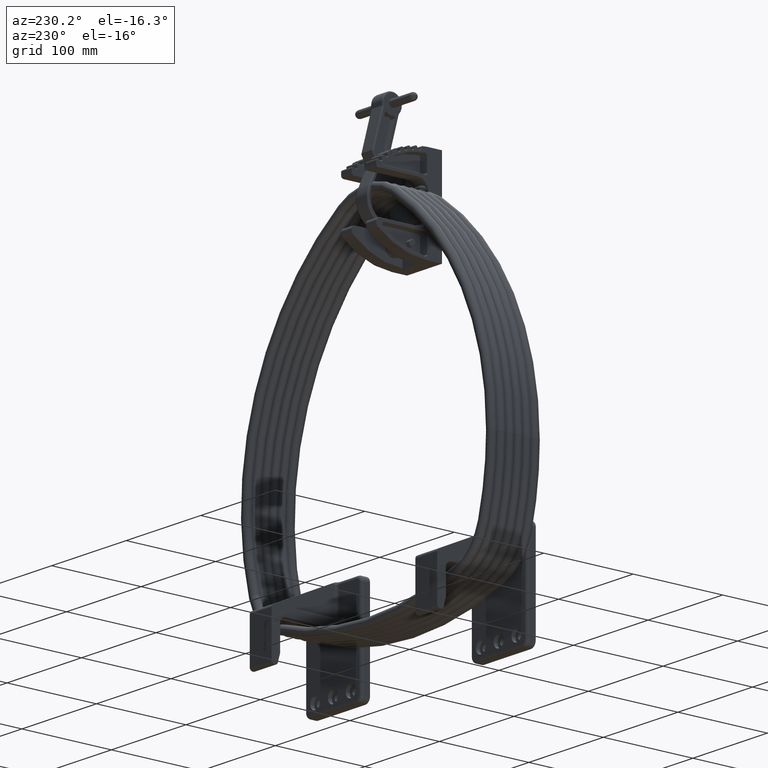
[diagram: clean part render]
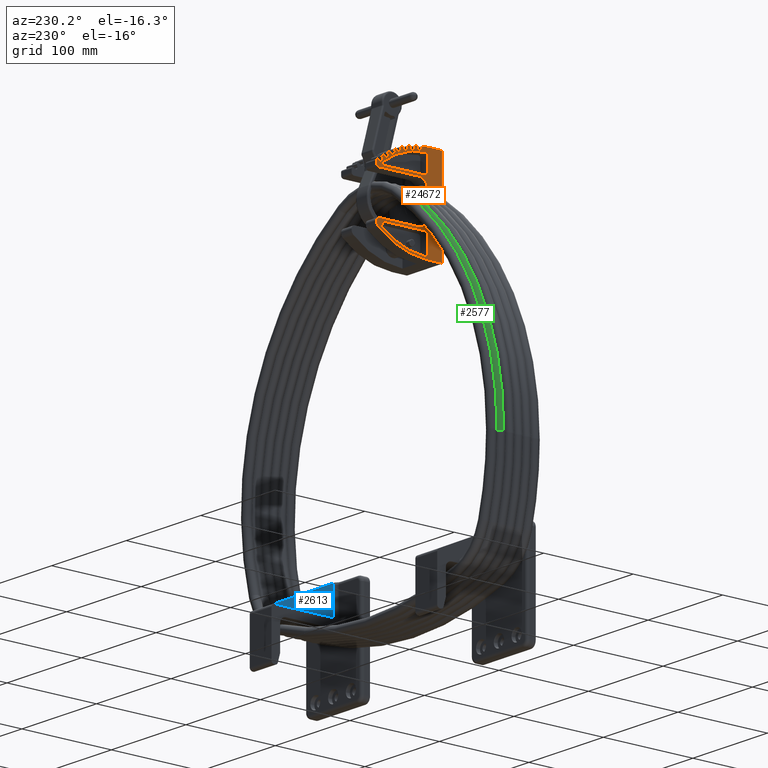
[diagram: same view with three faces highlighted in distinct colors, each labeled with its STEP entity id]
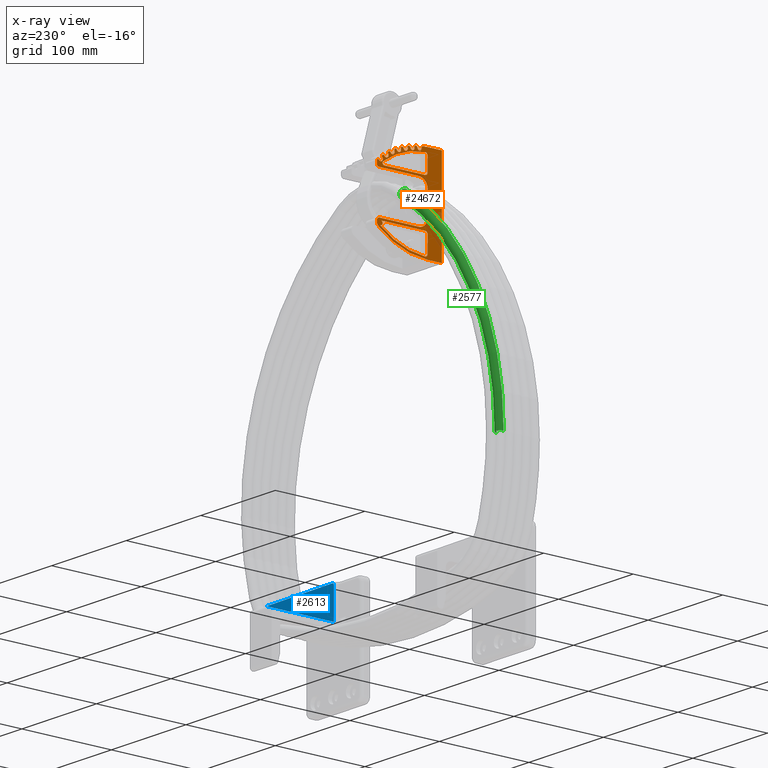
[diagram: x-ray of the same camera — body ghosted, the three highlighted faces saturated]
A machine part, auxiliary view with three faces highlighted in distinct colors.
The next image is the same camera in x-ray (body ghosted, the three faces saturated) — at least one of them is partly hidden behind the body in this view.
Their STEP definitions:

[orange] entity #24672 — the highlighted planar face has unit normal (-1, 0, 0).
#2015 = CARTESIAN_POINT ( 'NONE',  ( 1.736568379252359200, 1.756109418609299600, 0.9375000000000000000 ) ) ;
#2022 = DIRECTION ( 'NONE',  ( 0.0000000000000000000, 0.0000000000000000000, 1.000000000000000000 ) ) ;
#2023 = DIRECTION ( 'NONE',  ( 1.000000000000000000, 0.0000000000000000000, 0.0000000000000000000 ) ) ;
#5595 = AXIS2_PLACEMENT_3D ( 'NONE', #32948, #32955, #32956 ) ;
#8352 = EDGE_CURVE ( 'NONE', #23127, #23146, #24239, .T. ) ;
#9903 = EDGE_CURVE ( 'NONE', #22936, #22940, #30494, .T. ) ;
#11911 = CARTESIAN_POINT ( 'NONE',  ( -1.047895038850051600, 2.676249999999994700, 0.9375000000000000000 ) ) ;
#11912 = PLANE ( 'NONE',  #25111 ) ;
#11913 = DIRECTION ( 'NONE',  ( 0.0000000000000000000, 0.0000000000000000000, 1.000000000000000000 ) ) ;
#11914 = DIRECTION ( 'NONE',  ( 1.000000000000000000, 0.0000000000000000000, -0.0000000000000000000 ) ) ;
#13108 = FACE_OUTER_BOUND ( 'NONE', #18430, .T. ) ;
#13116 = FACE_BOUND ( 'NONE', #18273, .T. ) ;
#13118 = FACE_BOUND ( 'NONE', #18165, .T. ) ;
#13492 = LINE ( 'NONE', #16976, #13512 ) ;
#13493 = LINE ( 'NONE', #16988, #13518 ) ;
#13494 = CIRCLE ( 'NONE', #25288, 0.2031250000000044100 ) ;
#13505 = LINE ( 'NONE', #16964, #13506 ) ;
#13506 = VECTOR ( 'NONE', #16965, 39.37007874015748100 ) ;
#13507 = LINE ( 'NONE', #16966, #13508 ) ;
#13508 = VECTOR ( 'NONE', #16967, 39.37007874015748100 ) ;
#13509 = LINE ( 'NONE', #16968, #13510 ) ;
#13510 = VECTOR ( 'NONE', #16969, 39.37007874015748100 ) ;
#13511 = LINE ( 'NONE', #16983, #13514 ) ;
#13512 = VECTOR ( 'NONE', #16977, 39.37007874015748100 ) ;
#13513 = CIRCLE ( 'NONE', #25289, 0.1243750000000022800 ) ;
#13514 = VECTOR ( 'NONE', #16984, 39.37007874015748100 ) ;
#13515 = CIRCLE ( 'NONE', #25287, 3.352500000000000000 ) ;
#13516 = LINE ( 'NONE', #16978, #13517 ) ;
#13517 = VECTOR ( 'NONE', #16979, 39.37007874015748100 ) ;
#13518 = VECTOR ( 'NONE', #16989, 39.37007874015748100 ) ;
#13519 = CIRCLE ( 'NONE', #25290, 0.05437500000000124900 ) ;
#13520 = LINE ( 'NONE', #16996, #13523 ) ;
#13521 = CIRCLE ( 'NONE', #25292, 0.09374999999999759900 ) ;
#13522 = LINE ( 'NONE', #17003, #13525 ) ;
#13523 = VECTOR ( 'NONE', #16997, 39.37007874015748900 ) ;
#13524 = CIRCLE ( 'NONE', #25293, 0.05437500000000480100 ) ;
#13525 = VECTOR ( 'NONE', #17004, 39.37007874015748100 ) ;
#13526 = CIRCLE ( 'NONE', #25291, 0.05237500000000301600 ) ;
#13527 = LINE ( 'NONE', #16998, #13528 ) ;
#13528 = VECTOR ( 'NONE', #16999, 39.37007874015748900 ) ;
#13529 = LINE ( 'NONE', #17011, #13532 ) ;
#13530 = CIRCLE ( 'NONE', #25294, 0.09375000000000005600 ) ;
#13531 = LINE ( 'NONE', #17018, #13534 ) ;
#13532 = VECTOR ( 'NONE', #17012, 39.37007874015748100 ) ;
#13533 = CIRCLE ( 'NONE', #25296, 0.05437500000000233800 ) ;
#13534 = VECTOR ( 'NONE', #17019, 39.37007874015748100 ) ;
#13535 = CIRCLE ( 'NONE', #25295, 0.05237500000000137900 ) ;
#13536 = LINE ( 'NONE', #17013, #13537 ) ;
#13537 = VECTOR ( 'NONE', #17014, 39.37007874015748900 ) ;
#13538 = LINE ( 'NONE', #17026, #13541 ) ;
#13539 = CIRCLE ( 'NONE', #25297, 0.09375000000000197100 ) ;
#13540 = LINE ( 'NONE', #17033, #13543 ) ;
#13541 = VECTOR ( 'NONE', #17027, 39.37007874015748900 ) ;
#13542 = CIRCLE ( 'NONE', #25299, 0.05437499999999933400 ) ;
#13543 = VECTOR ( 'NONE', #17034, 39.37007874015748900 ) ;
#13544 = CIRCLE ( 'NONE', #25298, 0.05237500000000274600 ) ;
#13545 = LINE ( 'NONE', #17028, #13546 ) ;
#13546 = VECTOR ( 'NONE', #17029, 39.37007874015748100 ) ;
#13547 = LINE ( 'NONE', #17041, #13550 ) ;
#13548 = CIRCLE ( 'NONE', #25300, 0.09374999999999951400 ) ;
#13549 = LINE ( 'NONE', #17048, #13552 ) ;
#13550 = VECTOR ( 'NONE', #17042, 39.37007874015747400 ) ;
#13551 = CIRCLE ( 'NONE', #25302, 0.05437499999999742500 ) ;
#13552 = VECTOR ( 'NONE', #17049, 39.37007874015748100 ) ;
#13553 = CIRCLE ( 'NONE', #25301, 0.05237500000000001200 ) ;
#13554 = LINE ( 'NONE', #17043, #13555 ) ;
#13555 = VECTOR ( 'NONE', #17044, 39.37007874015747400 ) ;
#13556 = LINE ( 'NONE', #17056, #13559 ) ;
#13557 = CIRCLE ( 'NONE', #25303, 0.09374999999999895900 ) ;
#13558 = LINE ( 'NONE', #17063, #13561 ) ;
#13559 = VECTOR ( 'NONE', #17057, 39.37007874015748100 ) ;
#13560 = CIRCLE ( 'NONE', #25305, 0.05437499999999632900 ) ;
#13561 = VECTOR ( 'NONE', #17064, 39.37007874015748900 ) ;
#13562 = CIRCLE ( 'NONE', #25304, 0.05237500000000110100 ) ;
#13563 = LINE ( 'NONE', #17058, #13564 ) ;
#13564 = VECTOR ( 'NONE', #17059, 39.37007874015748100 ) ;
#13565 = LINE ( 'NONE', #17071, #13567 ) ;
#13566 = CIRCLE ( 'NONE', #25306, 0.09375000000000087400 ) ;
#13567 = VECTOR ( 'NONE', #17072, 39.37007874015748100 ) ;
#13568 = CIRCLE ( 'NONE', #25308, 0.05437499999999469100 ) ;
#13569 = LINE ( 'NONE', #17091, #13578 ) ;
#13570 = CIRCLE ( 'NONE', #25307, 0.05237500000000164900 ) ;
#13571 = LINE ( 'NONE', #17073, #13572 ) ;
#13572 = VECTOR ( 'NONE', #17074, 39.37007874015748100 ) ;
#13573 = LINE ( 'NONE', #17084, #13576 ) ;
#13574 = LINE ( 'NONE', #17096, #13583 ) ;
#13575 = CIRCLE ( 'NONE', #25309, 0.09375000000000470500 ) ;
#13576 = VECTOR ( 'NONE', #17085, 39.37007874015748100 ) ;
#13577 = CIRCLE ( 'NONE', #25310, 0.09374999999999855700 ) ;
#13578 = VECTOR ( 'NONE', #17092, 39.37007874015748100 ) ;
#13579 = CIRCLE ( 'NONE', #25311, 0.05237500000004972900 ) ;
#13580 = LINE ( 'NONE', #17086, #13581 ) ;
#13581 = VECTOR ( 'NONE', #17087, 39.37007874015748100 ) ;
#13582 = VECTOR ( 'NONE', #17102, 39.37007874015748100 ) ;
#13583 = VECTOR ( 'NONE', #17097, 39.37007874015748100 ) ;
#13584 = CIRCLE ( 'NONE', #25312, 0.3906250000000001700 ) ;
#13585 = LINE ( 'NONE', #17109, #13589 ) ;
#13586 = CIRCLE ( 'NONE', #25314, 0.3906250000000002200 ) ;
#13587 = LINE ( 'NONE', #17093, #13582 ) ;
#13588 = CIRCLE ( 'NONE', #25315, 0.1093750000000002500 ) ;
#13589 = VECTOR ( 'NONE', #17110, 39.37007874015748100 ) ;
#13590 = CIRCLE ( 'NONE', #25316, 0.08583975998035206500 ) ;
#13591 = LINE ( 'NONE', #17120, #13593 ) ;
#13592 = CIRCLE ( 'NONE', #25284, 3.258749999999997400 ) ;
#13593 = VECTOR ( 'NONE', #17121, 39.37007874015748100 ) ;
#13594 = LINE ( 'NONE', #17124, #13597 ) ;
#13595 = CIRCLE ( 'NONE', #25318, 0.1093750000000001100 ) ;
#13596 = CIRCLE ( 'NONE', #25317, 3.162499999999998300 ) ;
#13597 = VECTOR ( 'NONE', #17125, 39.37007874015748100 ) ;
#13598 = CIRCLE ( 'NONE', #25313, 0.07812499999999644700 ) ;
#13600 = CIRCLE ( 'NONE', #25321, 0.1093749999999997100 ) ;
#13604 = CIRCLE ( 'NONE', #25319, 0.1093750000000001100 ) ;
#13775 = CIRCLE ( 'NONE', #25410, 0.05237500000004972900 ) ;
#13779 = CIRCLE ( 'NONE', #25416, 0.05237500000000301600 ) ;
#13781 = CIRCLE ( 'NONE', #25414, 0.1093749999999997100 ) ;
#13783 = CIRCLE ( 'NONE', #25420, 0.05237500000000164900 ) ;
#13788 = CIRCLE ( 'NONE', #25424, 0.05237500000000137900 ) ;
#13792 = CIRCLE ( 'NONE', #25426, 0.05237500000000110100 ) ;
#15621 = CARTESIAN_POINT ( 'NONE',  ( 1.138491111598761000, 2.785150776654443700, 0.9375000000000000000 ) ) ;
#15626 = CARTESIAN_POINT ( 'NONE',  ( 1.159373523099561200, 2.826999999999954700, 0.9375000000000000000 ) ) ;
#16941 = CARTESIAN_POINT ( 'NONE',  ( -1.047895038850051600, 2.676249999999994700, 0.9375000000000000000 ) ) ;
#16944 = CARTESIAN_POINT ( 'NONE',  ( -1.015000000000002100, 2.754999999999996300, 0.9375000000000000000 ) ) ;
#16949 = CARTESIAN_POINT ( 'NONE',  ( 1.368124999999995600, 0.6559999999999964700, 0.9375000000000000000 ) ) ;
#16950 = DIRECTION ( 'NONE',  ( 0.0000000000000000000, 0.0000000000000000000, 1.000000000000000000 ) ) ;
#16951 = DIRECTION ( 'NONE',  ( 1.000000000000000000, 0.0000000000000000000, 0.0000000000000000000 ) ) ;
#16964 = CARTESIAN_POINT ( 'NONE',  ( -1.984375000000003300, -2.185478394931410600E-015, 0.9375000000000000000 ) ) ;
#16965 = DIRECTION ( 'NONE',  ( 0.0000000000000000000, -1.000000000000000000, 0.0000000000000000000 ) ) ;
#16966 = CARTESIAN_POINT ( 'NONE',  ( 2.000000000000002700, 0.01562499999999800700, 0.9375000000000000000 ) ) ;
#16967 = DIRECTION ( 'NONE',  ( 1.000000000000000000, 0.0000000000000000000, 0.0000000000000000000 ) ) ;
#16968 = CARTESIAN_POINT ( 'NONE',  ( -1.047895038850052100, 2.879374999999998700, 0.9375000000000000000 ) ) ;
#16969 = DIRECTION ( 'NONE',  ( -1.000000000000000000, 1.660948330912304700E-014, 0.0000000000000000000 ) ) ;
#16970 = CARTESIAN_POINT ( 'NONE',  ( 1.917303259816329500, 0.8518769027418418000, 0.9375000000000000000 ) ) ;
#16971 = DIRECTION ( 'NONE',  ( 0.0000000000000000000, 0.0000000000000000000, 1.000000000000000000 ) ) ;
#16972 = DIRECTION ( 'NONE',  ( 1.000000000000000000, 0.0000000000000000000, 0.0000000000000000000 ) ) ;
#16973 = CARTESIAN_POINT ( 'NONE',  ( 1.896992655477695700, 0.9997499999999995800, 0.9375000000000000000 ) ) ;
#16974 = DIRECTION ( 'NONE',  ( 0.0000000000000000000, 0.0000000000000000000, 1.000000000000000000 ) ) ;
#16975 = DIRECTION ( 'NONE',  ( 1.000000000000000000, 0.0000000000000000000, 0.0000000000000000000 ) ) ;
#16976 = CARTESIAN_POINT ( 'NONE',  ( 1.984375000000003100, 0.6559999999999964700, 0.9375000000000000000 ) ) ;
#16977 = DIRECTION ( 'NONE',  ( 0.0000000000000000000, 1.000000000000000000, 0.0000000000000000000 ) ) ;
#16978 = CARTESIAN_POINT ( 'NONE',  ( 1.971586690232485700, 0.8550348651601965600, 0.9375000000000000000 ) ) ;
#16979 = DIRECTION ( 'NONE',  ( -0.06395931537344953800, 0.9979525068744301600, 0.0000000000000000000 ) ) ;
#16980 = CARTESIAN_POINT ( 'NONE',  ( 1.883905016946869000, 1.163115969126880900, 0.9375000000000000000 ) ) ;
#16981 = DIRECTION ( 'NONE',  ( 0.0000000000000000000, 0.0000000000000000000, 1.000000000000000000 ) ) ;
#16982 = DIRECTION ( 'NONE',  ( 1.000000000000000000, 0.0000000000000000000, 0.0000000000000000000 ) ) ;
#16983 = CARTESIAN_POINT ( 'NONE',  ( 1.904133283033079500, 0.9063364794205927000, 0.9375000000000000000 ) ) ;
#16984 = DIRECTION ( 'NONE',  ( -0.9999799092698650200, 0.006338852942966186800, 0.0000000000000000000 ) ) ;
#16985 = CARTESIAN_POINT ( 'NONE',  ( 1.888285461157790600, 1.149017758982576500, 0.9375000000000000000 ) ) ;
#16986 = DIRECTION ( 'NONE',  ( -0.0000000000000000000, -0.0000000000000000000, -1.000000000000000000 ) ) ;
#16987 = DIRECTION ( 'NONE',  ( 1.000000000000000000, 1.456985596620977700E-015, 0.0000000000000000000 ) ) ;
#16988 = CARTESIAN_POINT ( 'NONE',  ( 1.902347323031667400, 1.098565755398573000, 0.9375000000000000000 ) ) ;
#16989 = DIRECTION ( 'NONE',  ( 0.9632840779761155900, 0.2684842362555105400, 0.0000000000000000000 ) ) ;
#16990 = CARTESIAN_POINT ( 'NONE',  ( 1.849667030018062700, 1.308397536410503200, 0.9375000000000000000 ) ) ;
#16991 = DIRECTION ( 'NONE',  ( 0.0000000000000000000, 0.0000000000000000000, 1.000000000000000000 ) ) ;
#16992 = DIRECTION ( 'NONE',  ( 1.000000000000000000, 0.0000000000000000000, 0.0000000000000000000 ) ) ;
#16993 = CARTESIAN_POINT ( 'NONE',  ( 1.821150701071210900, 1.469786957174293600, 0.9375000000000000000 ) ) ;
#16994 = DIRECTION ( 'NONE',  ( 0.0000000000000000000, 0.0000000000000000000, 1.000000000000000000 ) ) ;
#16995 = DIRECTION ( 'NONE',  ( 1.000000000000000000, 0.0000000000000000000, 0.0000000000000000000 ) ) ;
#16996 = CARTESIAN_POINT ( 'NONE',  ( 1.865631408573094100, 1.216081703498287100, 0.9375000000000000000 ) ) ;
#16997 = DIRECTION ( 'NONE',  ( -0.9960769660846547900, -0.08849111613935767300, 0.0000000000000000000 ) ) ;
#16998 = CARTESIAN_POINT ( 'NONE',  ( 1.937659198804336300, 1.171316369521127100, 0.9375000000000000000 ) ) ;
#16999 = DIRECTION ( 'NONE',  ( -0.1640141069459968000, 0.9864579933898386400, 0.0000000000000000000 ) ) ;
#17000 = CARTESIAN_POINT ( 'NONE',  ( 1.826847973037622800, 1.456167525728793400, 0.9375000000000000000 ) ) ;
#17001 = DIRECTION ( 'NONE',  ( -0.0000000000000000000, -0.0000000000000000000, -1.000000000000000000 ) ) ;
#17002 = DIRECTION ( 'NONE',  ( 1.000000000000000000, 0.0000000000000000000, 0.0000000000000000000 ) ) ;
#17003 = CARTESIAN_POINT ( 'NONE',  ( 1.845629518221846100, 1.407275868102024500, 0.9375000000000000000 ) ) ;
#17004 = DIRECTION ( 'NONE',  ( 0.9334922697234193700, 0.3585975214172832400, 0.0000000000000000000 ) ) ;
#17005 = CARTESIAN_POINT ( 'NONE',  ( 1.773293745832060100, 1.611168304517431200, 0.9375000000000000000 ) ) ;
#17006 = DIRECTION ( 'NONE',  ( 0.0000000000000000000, 0.0000000000000000000, 1.000000000000000000 ) ) ;
#17007 = DIRECTION ( 'NONE',  ( 1.000000000000000000, 0.0000000000000000000, 0.0000000000000000000 ) ) ;
#17008 = CARTESIAN_POINT ( 'NONE',  ( 1.729605600305671900, 1.769127388116776200, 0.9375000000000000000 ) ) ;
#17009 = DIRECTION ( 'NONE',  ( 0.0000000000000000000, 0.0000000000000000000, 1.000000000000000000 ) ) ;
#17010 = DIRECTION ( 'NONE',  ( 1.000000000000000000, 0.0000000000000000000, 0.0000000000000000000 ) ) ;
#17011 = CARTESIAN_POINT ( 'NONE',  ( 1.797938068967136500, 1.520781736233538500, 0.9375000000000000000 ) ) ;
#17012 = DIRECTION ( 'NONE',  ( -0.9832014054147187900, -0.1825239611407826200, 0.0000000000000000000 ) ) ;
#17013 = CARTESIAN_POINT ( 'NONE',  ( 1.873885350063127200, 1.483046498248204600, 0.9375000000000000000 ) ) ;
#17014 = DIRECTION ( 'NONE',  ( -0.2567948874768214400, 0.9664659258172357800, 0.0000000000000000000 ) ) ;
#17015 = CARTESIAN_POINT ( 'NONE',  ( 1.736568379252359200, 1.756109418609299600, 0.9375000000000000000 ) ) ;
#17016 = DIRECTION ( 'NONE',  ( -0.0000000000000000000, -0.0000000000000000000, -1.000000000000000000 ) ) ;
#17017 = DIRECTION ( 'NONE',  ( 1.000000000000000000, 0.0000000000000000000, 0.0000000000000000000 ) ) ;
#17018 = CARTESIAN_POINT ( 'NONE',  ( 1.759900424414289700, 1.709218520840522200, 0.9375000000000000000 ) ) ;
#17019 = DIRECTION ( 'NONE',  ( 0.8952916041771185100, 0.4454805758840242300, 0.0000000000000000000 ) ) ;
#17020 = CARTESIAN_POINT ( 'NONE',  ( 1.668560770103355600, 1.905334958563104800, 0.9375000000000000000 ) ) ;
#17021 = DIRECTION ( 'NONE',  ( 0.0000000000000000000, 0.0000000000000000000, 1.000000000000000000 ) ) ;
#17022 = DIRECTION ( 'NONE',  ( 1.000000000000000000, 0.0000000000000000000, 0.0000000000000000000 ) ) ;
#17023 = CARTESIAN_POINT ( 'NONE',  ( 1.610094348890113200, 2.058440816522867100, 0.9375000000000000000 ) ) ;
#17024 = DIRECTION ( 'NONE',  ( 0.0000000000000000000, 0.0000000000000000000, 1.000000000000000000 ) ) ;
#17025 = DIRECTION ( 'NONE',  ( 1.000000000000000000, 0.0000000000000000000, 0.0000000000000000000 ) ) ;
#17026 = CARTESIAN_POINT ( 'NONE',  ( 1.701663042839974400, 1.817691853137778100, 0.9375000000000000000 ) ) ;
#17027 = DIRECTION ( 'NONE',  ( -0.9614692097440238300, -0.2749126383311654200, 0.0000000000000000000 ) ) ;
#17028 = CARTESIAN_POINT ( 'NONE',  ( 1.780845685034151200, 1.787326628507771400, 0.9375000000000000000 ) ) ;
#17029 = DIRECTION ( 'NONE',  ( -0.3472624709590279000, 0.9377679757079734300, 0.0000000000000000000 ) ) ;
#17030 = CARTESIAN_POINT ( 'NONE',  ( 1.618259914410683100, 2.046141574249977300, 0.9375000000000000000 ) ) ;
#17031 = DIRECTION ( 'NONE',  ( -0.0000000000000000000, -0.0000000000000000000, -1.000000000000000000 ) ) ;
#17032 = DIRECTION ( 'NONE',  ( 1.000000000000000000, 0.0000000000000000000, 0.0000000000000000000 ) ) ;
#17033 = CARTESIAN_POINT ( 'NONE',  ( 1.645932285514047900, 2.001673827483161400, 0.9375000000000000000 ) ) ;
#17034 = DIRECTION ( 'NONE',  ( 0.8490261912516371400, 0.5283507609237808600, 0.0000000000000000000 ) ) ;
#17035 = CARTESIAN_POINT ( 'NONE',  ( 1.536411532869217400, 2.188247658270714900, 0.9375000000000000000 ) ) ;
#17036 = DIRECTION ( 'NONE',  ( 0.0000000000000000000, 0.0000000000000000000, 1.000000000000000000 ) ) ;
#17037 = DIRECTION ( 'NONE',  ( 1.000000000000000000, 0.0000000000000000000, 0.0000000000000000000 ) ) ;
#17038 = CARTESIAN_POINT ( 'NONE',  ( 1.463693498918985800, 2.335121119758806900, 0.9375000000000000000 ) ) ;
#17039 = DIRECTION ( 'NONE',  ( 0.0000000000000000000, 0.0000000000000000000, 1.000000000000000000 ) ) ;
#17040 = DIRECTION ( 'NONE',  ( 1.000000000000000000, 0.0000000000000000000, 0.0000000000000000000 ) ) ;
#17041 = CARTESIAN_POINT ( 'NONE',  ( 1.577673571391013700, 2.104137500941471600, 0.9375000000000000000 ) ) ;
#17042 = DIRECTION ( 'NONE',  ( -0.9310761417349555600, -0.3648249145712900700, 0.0000000000000000000 ) ) ;
#17043 = CARTESIAN_POINT ( 'NONE',  ( 1.659378300926405100, 2.081415818274232600, 0.9375000000000000000 ) ) ;
#17044 = DIRECTION ( 'NONE',  ( -0.4346019293822200300, 0.9006226529336534000, 0.0000000000000000000 ) ) ;
#17045 = CARTESIAN_POINT ( 'NONE',  ( 1.472988295958504600, 2.323651395753745700, 0.9375000000000000000 ) ) ;
#17046 = DIRECTION ( 'NONE',  ( -0.0000000000000000000, -0.0000000000000000000, -1.000000000000000000 ) ) ;
#17047 = DIRECTION ( 'NONE',  ( 1.000000000000000000, 2.913971193241913100E-015, 0.0000000000000000000 ) ) ;
#17048 = CARTESIAN_POINT ( 'NONE',  ( 1.504751721501960600, 2.282007363495264700, 0.9375000000000000000 ) ) ;
#17049 = DIRECTION ( 'NONE',  ( 0.7951127877512328400, 0.6064615855554768000, 0.0000000000000000000 ) ) ;
#17050 = CARTESIAN_POINT ( 'NONE',  ( 1.378036428644311900, 2.457357938489008700, 0.9375000000000000000 ) ) ;
#17051 = DIRECTION ( 'NONE',  ( 0.0000000000000000000, 0.0000000000000000000, 1.000000000000000000 ) ) ;
#17052 = DIRECTION ( 'NONE',  ( 1.000000000000000000, 0.0000000000000000000, 0.0000000000000000000 ) ) ;
#17053 = CARTESIAN_POINT ( 'NONE',  ( 1.291721822807445400, 2.596675973826529500, 0.9375000000000000000 ) ) ;
#17054 = DIRECTION ( 'NONE',  ( 0.0000000000000000000, 0.0000000000000000000, 1.000000000000000000 ) ) ;
#17055 = DIRECTION ( 'NONE',  ( 1.000000000000000000, 0.0000000000000000000, 0.0000000000000000000 ) ) ;
#17056 = CARTESIAN_POINT ( 'NONE',  ( 1.427086546323745900, 2.377538389852359700, 0.9375000000000000000 ) ) ;
#17057 = DIRECTION ( 'NONE',  ( -0.8922959808070960500, -0.4514508640322915100, 0.0000000000000000000 ) ) ;
#17058 = CARTESIAN_POINT ( 'NONE',  ( 1.510577370591564400, 2.362664925065624200, 0.9375000000000000000 ) ) ;
#17059 = DIRECTION ( 'NONE',  ( -0.5180265127475411900, 0.8553645609274570500, 0.0000000000000000000 ) ) ;
#17060 = CARTESIAN_POINT ( 'NONE',  ( 1.302062124243127800, 2.586139086858479700, 0.9375000000000000000 ) ) ;
#17061 = DIRECTION ( 'NONE',  ( -0.0000000000000000000, -0.0000000000000000000, -1.000000000000000000 ) ) ;
#17062 = DIRECTION ( 'NONE',  ( 1.000000000000000000, -2.913971193241853600E-015, 0.0000000000000000000 ) ) ;
#17063 = CARTESIAN_POINT ( 'NONE',  ( 1.337630480686919700, 2.547693896718651500, 0.9375000000000000000 ) ) ;
#17064 = DIRECTION ( 'NONE',  ( 0.7340370432425901100, 0.6791094309076229900, 0.0000000000000000000 ) ) ;
#17065 = CARTESIAN_POINT ( 'NONE',  ( 1.194862093399240200, 2.710241665654172600, 0.9375000000000000000 ) ) ;
#17066 = DIRECTION ( 'NONE',  ( 0.0000000000000000000, 0.0000000000000000000, 1.000000000000000000 ) ) ;
#17067 = DIRECTION ( 'NONE',  ( 1.000000000000000000, 0.0000000000000000000, 0.0000000000000000000 ) ) ;
#17068 = CARTESIAN_POINT ( 'NONE',  ( 0.9843749999999962300, 2.785624999999997800, 0.9375000000000000000 ) ) ;
#17069 = DIRECTION ( 'NONE',  ( 0.0000000000000000000, 0.0000000000000000000, 1.000000000000000000 ) ) ;
#17070 = DIRECTION ( 'NONE',  ( 1.000000000000000000, 0.0000000000000000000, 0.0000000000000000000 ) ) ;
#17071 = CARTESIAN_POINT ( 'NONE',  ( 1.251258448934381200, 2.635431736692312100, 0.9375000000000000000 ) ) ;
#17072 = DIRECTION ( 'NONE',  ( -0.8454780569438303800, -0.5340101639730138200, 0.0000000000000000000 ) ) ;
#17073 = CARTESIAN_POINT ( 'NONE',  ( 1.335783286263087800, 2.628540469302490300, 0.9375000000000000000 ) ) ;
#17074 = DIRECTION ( 'NONE',  ( -0.5967847360775754300, 0.8024013825915422600, 0.0000000000000000000 ) ) ;
#17075 = CARTESIAN_POINT ( 'NONE',  ( 1.106998523099511600, 2.826999999999954700, 0.9375000000000000000 ) ) ;
#17076 = DIRECTION ( 'NONE',  ( -0.0000000000000000000, -0.0000000000000000000, -1.000000000000000000 ) ) ;
#17077 = DIRECTION ( 'NONE',  ( 1.000000000000000000, 0.0000000000000000000, 0.0000000000000000000 ) ) ;
#17078 = CARTESIAN_POINT ( 'NONE',  ( 0.4999999999999930100, 1.030999999999996800, 0.9375000000000000000 ) ) ;
#17079 = DIRECTION ( 'NONE',  ( 0.0000000000000000000, 0.0000000000000000000, 1.000000000000000000 ) ) ;
#17080 = DIRECTION ( 'NONE',  ( 1.000000000000000000, 0.0000000000000000000, 0.0000000000000000000 ) ) ;
#17081 = CARTESIAN_POINT ( 'NONE',  ( -0.5000000000000017800, 1.030999999999996800, 0.9375000000000000000 ) ) ;
#17082 = DIRECTION ( 'NONE',  ( 0.0000000000000000000, 0.0000000000000000000, 1.000000000000000000 ) ) ;
#17083 = DIRECTION ( 'NONE',  ( 1.000000000000000000, 0.0000000000000000000, 0.0000000000000000000 ) ) ;
#17084 = CARTESIAN_POINT ( 'NONE',  ( 0.8906249999999934500, 1.030999999999996800, 0.9375000000000000000 ) ) ;
#17085 = DIRECTION ( 'NONE',  ( -2.491105957035160900E-015, -1.000000000000000000, 0.0000000000000000000 ) ) ;
#17086 = CARTESIAN_POINT ( 'NONE',  ( 0.9843749999999974500, 2.879374999999996000, 0.9375000000000000000 ) ) ;
#17087 = DIRECTION ( 'NONE',  ( -1.000000000000000000, -6.683500664339648000E-014, 0.0000000000000000000 ) ) ;
#17088 = CARTESIAN_POINT ( 'NONE',  ( -1.779854324602530200, 0.7497499999999965900, 0.9375000000000000000 ) ) ;
#17089 = DIRECTION ( 'NONE',  ( -0.0000000000000000000, -0.0000000000000000000, -1.000000000000000000 ) ) ;
#17090 = DIRECTION ( 'NONE',  ( 1.000000000000000000, 0.0000000000000000000, 0.0000000000000000000 ) ) ;
#17091 = CARTESIAN_POINT ( 'NONE',  ( -0.5000000000000018900, 0.6403749999999962500, 0.9375000000000000000 ) ) ;
#17092 = DIRECTION ( 'NONE',  ( -1.000000000000000000, 0.0000000000000000000, 0.0000000000000000000 ) ) ;
#17093 = CARTESIAN_POINT ( 'NONE',  ( -1.779854324602530200, 0.6403749999999971400, 0.9375000000000000000 ) ) ;
#17094 = DIRECTION ( 'NONE',  ( -0.0000000000000000000, -0.0000000000000000000, -1.000000000000000000 ) ) ;
#17095 = DIRECTION ( 'NONE',  ( 1.000000000000000000, 0.0000000000000000000, 0.0000000000000000000 ) ) ;
#17096 = CARTESIAN_POINT ( 'NONE',  ( -0.8906249999999998900, 2.754999999999996300, 0.9375000000000000000 ) ) ;
#17097 = DIRECTION ( 'NONE',  ( 1.267678883370888200E-015, 1.000000000000000000, 0.0000000000000000000 ) ) ;
#17098 = CARTESIAN_POINT ( 'NONE',  ( 1.368124999999995600, 0.6559999999999964700, 0.9375000000000000000 ) ) ;
#17099 = DIRECTION ( 'NONE',  ( -0.0000000000000000000, -0.0000000000000000000, -1.000000000000000000 ) ) ;
#17100 = DIRECTION ( 'NONE',  ( 1.000000000000000000, 0.0000000000000000000, 0.0000000000000000000 ) ) ;
#17101 = CARTESIAN_POINT ( 'NONE',  ( -1.062500000000002200, 2.707447659580906500, 0.9375000000000000000 ) ) ;
#17102 = DIRECTION ( 'NONE',  ( -1.000000000000000000, 9.954200460865986100E-016, -0.0000000000000000000 ) ) ;
#17103 = CARTESIAN_POINT ( 'NONE',  ( -1.093749999999999300, 0.7497499999999965900, 0.9375000000000000000 ) ) ;
#17104 = DIRECTION ( 'NONE',  ( 0.0000000000000000000, 0.0000000000000000000, 1.000000000000000000 ) ) ;
#17105 = DIRECTION ( 'NONE',  ( 1.000000000000000000, 0.0000000000000000000, 0.0000000000000000000 ) ) ;
#17106 = CARTESIAN_POINT ( 'NONE',  ( -1.374999999999999300, 0.6559999999999964700, 0.9375000000000000000 ) ) ;
#17107 = DIRECTION ( 'NONE',  ( -0.0000000000000000000, -0.0000000000000000000, -1.000000000000000000 ) ) ;
#17108 = DIRECTION ( 'NONE',  ( 1.000000000000000000, 0.0000000000000000000, 0.0000000000000000000 ) ) ;
#17109 = CARTESIAN_POINT ( 'NONE',  ( -0.9843749999999991100, 0.7497499999999965900, 0.9375000000000000000 ) ) ;
#17110 = DIRECTION ( 'NONE',  ( -5.091934183934458900E-016, -1.000000000000000000, -0.0000000000000000000 ) ) ;
#17111 = DIRECTION ( 'NONE',  ( -0.0000000000000000000, -0.0000000000000000000, -1.000000000000000000 ) ) ;
#17112 = DIRECTION ( 'NONE',  ( 1.000000000000000000, 0.0000000000000000000, 0.0000000000000000000 ) ) ;
#17113 = CARTESIAN_POINT ( 'NONE',  ( 1.676685305388644600, 0.7497499999999965900, 0.9375000000000000000 ) ) ;
#17114 = DIRECTION ( 'NONE',  ( -0.0000000000000000000, -0.0000000000000000000, -1.000000000000000000 ) ) ;
#17115 = DIRECTION ( 'NONE',  ( 1.000000000000000000, -1.770842177711222800E-015, 0.0000000000000000000 ) ) ;
#17116 = CARTESIAN_POINT ( 'NONE',  ( 1.062081482120402100, 2.546503369510575900, 0.9375000000000000000 ) ) ;
#17118 = DIRECTION ( 'NONE',  ( -0.0000000000000000000, -0.0000000000000000000, -1.000000000000000000 ) ) ;
#17119 = DIRECTION ( 'NONE',  ( 1.000000000000000000, 0.0000000000000000000, 0.0000000000000000000 ) ) ;
#17120 = CARTESIAN_POINT ( 'NONE',  ( 0.9839564821204057600, 2.546503369510575900, 0.9375000000000000000 ) ) ;
#17121 = DIRECTION ( 'NONE',  ( 3.649045715484118000E-015, 1.000000000000000000, -0.0000000000000000000 ) ) ;
#17122 = DIRECTION ( 'NONE',  ( -0.0000000000000000000, -0.0000000000000000000, -1.000000000000000000 ) ) ;
#17123 = DIRECTION ( 'NONE',  ( 1.000000000000000000, 1.998151675365866500E-014, 0.0000000000000000000 ) ) ;
#17124 = CARTESIAN_POINT ( 'NONE',  ( 1.093331482120399200, 0.6403749999999964700, 0.9375000000000000000 ) ) ;
#17125 = DIRECTION ( 'NONE',  ( -1.000000000000000000, 7.024505243727708900E-016, -0.0000000000000000000 ) ) ;
#17129 = CARTESIAN_POINT ( 'NONE',  ( 1.093331482120399200, 0.7497499999999965900, 0.9375000000000000000 ) ) ;
#17131 = DIRECTION ( 'NONE',  ( -0.0000000000000000000, -0.0000000000000000000, -1.000000000000000000 ) ) ;
#17132 = DIRECTION ( 'NONE',  ( 1.000000000000000000, 0.0000000000000000000, 0.0000000000000000000 ) ) ;
#17497 = CARTESIAN_POINT ( 'NONE',  ( 1.106998523099511600, 2.826999999999954700, 0.9375000000000000000 ) ) ;
#17498 = DIRECTION ( 'NONE',  ( 0.0000000000000000000, 0.0000000000000000000, 1.000000000000000000 ) ) ;
#17499 = DIRECTION ( 'NONE',  ( 1.000000000000000000, 0.0000000000000000000, 0.0000000000000000000 ) ) ;
#17504 = CARTESIAN_POINT ( 'NONE',  ( 1.888285461157790600, 1.149017758982576500, 0.9375000000000000000 ) ) ;
#17510 = DIRECTION ( 'NONE',  ( 0.0000000000000000000, 0.0000000000000000000, 1.000000000000000000 ) ) ;
#17511 = DIRECTION ( 'NONE',  ( 1.000000000000000000, 0.0000000000000000000, 0.0000000000000000000 ) ) ;
#17515 = CARTESIAN_POINT ( 'NONE',  ( 1.676685305388644600, 0.7497499999999965900, 0.9375000000000000000 ) ) ;
#17516 = CARTESIAN_POINT ( 'NONE',  ( 1.302062124243127800, 2.586139086858479700, 0.9375000000000000000 ) ) ;
#17517 = DIRECTION ( 'NONE',  ( -0.0000000000000000000, -0.0000000000000000000, -1.000000000000000000 ) ) ;
#17518 = DIRECTION ( 'NONE',  ( 1.000000000000000000, 0.0000000000000000000, 0.0000000000000000000 ) ) ;
#17522 = DIRECTION ( 'NONE',  ( 0.0000000000000000000, 0.0000000000000000000, 1.000000000000000000 ) ) ;
#17523 = DIRECTION ( 'NONE',  ( 1.000000000000000000, 0.0000000000000000000, 0.0000000000000000000 ) ) ;
#17528 = CARTESIAN_POINT ( 'NONE',  ( 1.826847973037622800, 1.456167525728793400, 0.9375000000000000000 ) ) ;
#17534 = DIRECTION ( 'NONE',  ( 0.0000000000000000000, 0.0000000000000000000, 1.000000000000000000 ) ) ;
#17535 = DIRECTION ( 'NONE',  ( 1.000000000000000000, 0.0000000000000000000, 0.0000000000000000000 ) ) ;
#17545 = CARTESIAN_POINT ( 'NONE',  ( 1.472988295958504600, 2.323651395753745700, 0.9375000000000000000 ) ) ;
#17546 = DIRECTION ( 'NONE',  ( 0.0000000000000000000, 0.0000000000000000000, 1.000000000000000000 ) ) ;
#17547 = DIRECTION ( 'NONE',  ( 1.000000000000000000, 0.0000000000000000000, 0.0000000000000000000 ) ) ;
#18165 = EDGE_LOOP ( 'NONE', ( #32232, #32234, #32236, #32238, #32240, #32242, #32244 ) ) ;
#18273 = EDGE_LOOP ( 'NONE', ( #32220, #32222, #32224, #32226, #32228, #32230 ) ) ;
#18430 = EDGE_LOOP ( 'NONE', ( #32130, #32131, #32132, #32133, #32134, #32135, #32136, #32137, #32138, #32139, #32140, #32141, #32142, #32143, #32144, #32145, #32146, #32147, #32148, #32149, #32150, #32151, #32152, #32153, #32154, #32155, #32156, #32157, #32158, #32159, #32160, #32161, #32162, #32163, #32164, #32166, #32168, #32170, #32172, #32174, #32176, #32178, #32180, #32182, #32184, #32186, #32188, #32190, #32192, #32194, #32196, #32198, #32200, #32202, #32204, #32206, #32208, #32210, #32212, #32214, #32216, #32218 ) ) ;
#20568 = CARTESIAN_POINT ( 'NONE',  ( 1.984375000000003100, 0.01562499999999800700, 0.9375000000000000000 ) ) ;
#20592 = CARTESIAN_POINT ( 'NONE',  ( 1.798665419576880500, 1.520916763414843900, 0.9375000000000000000 ) ) ;
#20618 = CARTESIAN_POINT ( 'NONE',  ( 1.877159509646053600, 1.470723964479347900, 0.9375000000000000000 ) ) ;
#20646 = CARTESIAN_POINT ( 'NONE',  ( 1.335731802309134900, 2.628609691575339600, 0.9375000000000000000 ) ) ;
#20657 = CARTESIAN_POINT ( 'NONE',  ( 1.106998523099512700, 2.879375000000004500, 0.9375000000000000000 ) ) ;
#20665 = CARTESIAN_POINT ( 'NONE',  ( 1.971582115506283400, 0.8551062442776130600, 0.9375000000000000000 ) ) ;
#20667 = CARTESIAN_POINT ( 'NONE',  ( -0.8906249999999998900, 2.754999999999996300, 0.9375000000000000000 ) ) ;
#20669 = CARTESIAN_POINT ( 'NONE',  ( 1.904873046008128700, 0.9063317900776689500, 0.9375000000000000000 ) ) ;
#20670 = CARTESIAN_POINT ( 'NONE',  ( 1.619027886266768200, 1.984931163992955400, 0.9375000000000000000 ) ) ;
#20675 = CARTESIAN_POINT ( 'NONE',  ( 1.785273315031983500, 1.775369996370700400, 0.9375000000000000000 ) ) ;
#20681 = CARTESIAN_POINT ( 'NONE',  ( -1.015000000000002300, 2.879374999999998200, 0.9375000000000000000 ) ) ;
#20687 = CARTESIAN_POINT ( 'NONE',  ( 1.479555759223403700, 2.262789482122401300, 0.9375000000000000000 ) ) ;
#20691 = CARTESIAN_POINT ( 'NONE',  ( -1.984375000000004400, 0.6559999999999969200, 0.9375000000000000000 ) ) ;
#20698 = CARTESIAN_POINT ( 'NONE',  ( 1.811225960684192700, 1.523248533593723400, 0.9375000000000000000 ) ) ;
#20701 = CARTESIAN_POINT ( 'NONE',  ( 0.9843749999999962300, 2.879374999999996000, 0.9375000000000000000 ) ) ;
#20705 = CARTESIAN_POINT ( 'NONE',  ( 1.731529941842939300, 1.695101892409041300, 0.9375000000000000000 ) ) ;
#20709 = CARTESIAN_POINT ( 'NONE',  ( 1.780815727087876200, 1.787407528705702500, 0.9375000000000000000 ) ) ;
#20710 = CARTESIAN_POINT ( 'NONE',  ( 1.816048512385186400, 1.395912436697071700, 0.9375000000000000000 ) ) ;
#20716 = CARTESIAN_POINT ( 'NONE',  ( 1.714657225596422500, 1.821407276396608900, 0.9375000000000000000 ) ) ;
#20721 = CARTESIAN_POINT ( 'NONE',  ( -0.8906250000000021100, 1.030999999999996800, 0.9375000000000000000 ) ) ;
#20726 = CARTESIAN_POINT ( 'NONE',  ( 1.702374316452995900, 1.817895227414925400, 0.9375000000000000000 ) ) ;
#20733 = CARTESIAN_POINT ( 'NONE',  ( -0.9843749999999991100, 0.7497499999999965900, 0.9375000000000000000 ) ) ;
#20734 = CARTESIAN_POINT ( 'NONE',  ( 1.871822258328754900, 1.090057882310261600, 0.9375000000000000000 ) ) ;
#20736 = CARTESIAN_POINT ( 'NONE',  ( 0.8906249999999934500, 1.030999999999996800, 0.9375000000000000000 ) ) ;
#20742 = CARTESIAN_POINT ( 'NONE',  ( 1.659340808302400800, 2.081493513986592000, 0.9375000000000000000 ) ) ;
#20743 = CARTESIAN_POINT ( 'NONE',  ( -1.984375000000003300, 0.01562499999999800700, 0.9375000000000000000 ) ) ;
#20751 = CARTESIAN_POINT ( 'NONE',  ( 1.917647934945113200, 0.9062508103083918300, 0.9375000000000000000 ) ) ;
#20760 = CARTESIAN_POINT ( 'NONE',  ( -1.203720899660979600, 2.806549910696568300, 0.9375000000000000000 ) ) ;
#20763 = CARTESIAN_POINT ( 'NONE',  ( 1.873863196654423700, 1.483129874186343000, 0.9375000000000000000 ) ) ;
#20764 = CARTESIAN_POINT ( 'NONE',  ( 1.664919517442938800, 2.069932792585159800, 0.9375000000000000000 ) ) ;
#20770 = CARTESIAN_POINT ( 'NONE',  ( 1.517182258592226600, 2.351758944414724400, 0.9375000000000000000 ) ) ;
#20772 = CARTESIAN_POINT ( 'NONE',  ( 0.8906249999999976700, 2.785624999999997800, 0.9375000000000000000 ) ) ;
#20774 = CARTESIAN_POINT ( 'NONE',  ( -1.779854324602530200, 0.6403749999999971400, 0.9375000000000000000 ) ) ;
#20776 = CARTESIAN_POINT ( 'NONE',  ( -1.047895038850052100, 2.879374999999998700, 0.9375000000000000000 ) ) ;
#20778 = CARTESIAN_POINT ( 'NONE',  ( 1.984375000000003100, 0.6554998057765173400, 0.9375000000000000000 ) ) ;
#20783 = CARTESIAN_POINT ( 'NONE',  ( 1.866368284237269500, 1.216147167264842300, 0.9375000000000000000 ) ) ;
#20785 = CARTESIAN_POINT ( 'NONE',  ( 1.937645049490146500, 1.171401470152673800, 0.9375000000000000000 ) ) ;
#20790 = CARTESIAN_POINT ( 'NONE',  ( 1.879093312506805900, 1.217277654157740100, 0.9375000000000000000 ) ) ;
#20792 = CARTESIAN_POINT ( 'NONE',  ( 1.939750394486885900, 1.158738934962471500, 0.9375000000000000000 ) ) ;
#20796 = CARTESIAN_POINT ( 'NONE',  ( -0.5000000000000018900, 0.6403749999999962500, 0.9375000000000000000 ) ) ;
#20805 = CARTESIAN_POINT ( 'NONE',  ( 0.4999999999999929500, 0.6403749999999965900, 0.9375000000000000000 ) ) ;
#20806 = CARTESIAN_POINT ( 'NONE',  ( -0.9843749999999981100, 2.671881541315289900, 0.9375000000000000000 ) ) ;
#20807 = CARTESIAN_POINT ( 'NONE',  ( 1.123811002944120600, 2.594388459923704800, 0.9375000000000000000 ) ) ;
#20813 = CARTESIAN_POINT ( 'NONE',  ( 0.9839564821203992100, 0.7497499999999965900, 0.9375000000000000000 ) ) ;
#20820 = CARTESIAN_POINT ( 'NONE',  ( 1.251883914863223900, 2.635826785576759900, 0.9375000000000000000 ) ) ;
#20821 = CARTESIAN_POINT ( 'NONE',  ( 1.262685020141397700, 2.642648843172834500, 0.9375000000000000000 ) ) ;
#20822 = CARTESIAN_POINT ( 'NONE',  ( 0.9839564821204057600, 2.546503369510575900, 0.9375000000000000000 ) ) ;
#20831 = CARTESIAN_POINT ( 'NONE',  ( 1.510532681021741200, 2.362738716412841300, 0.9375000000000000000 ) ) ;
#20834 = CARTESIAN_POINT ( 'NONE',  ( 1.786008729839619200, 0.7531084953940613300, 0.9375000000000000000 ) ) ;
#20836 = CARTESIAN_POINT ( 'NONE',  ( -1.145270142853197100, 2.730197777065135800, 0.9375000000000000000 ) ) ;
#20838 = CARTESIAN_POINT ( 'NONE',  ( 1.314369919496719100, 2.526173911292999700, 0.9375000000000000000 ) ) ;
#20842 = CARTESIAN_POINT ( 'NONE',  ( 1.439145858187243600, 2.383639713715195900, 0.9375000000000000000 ) ) ;
#20849 = CARTESIAN_POINT ( 'NONE',  ( 1.590256994160324800, 2.109068081729712900, 0.9375000000000000000 ) ) ;
#20851 = CARTESIAN_POINT ( 'NONE',  ( 1.427746647115036200, 2.377872363196391600, 0.9375000000000000000 ) ) ;
#20852 = CARTESIAN_POINT ( 'NONE',  ( 1.578362360885905200, 2.104407390327922100, 0.9375000000000000000 ) ) ;
#20854 = CARTESIAN_POINT ( 'NONE',  ( 1.093331482120399200, 0.6403749999999964700, 0.9375000000000000000 ) ) ;
#20855 = CARTESIAN_POINT ( 'NONE',  ( 1.343392349207357200, 2.618309774283624800, 0.9375000000000000000 ) ) ;
#20856 = CARTESIAN_POINT ( 'NONE',  ( -1.889180854034054400, 0.7530058543361782800, 0.9375000000000000000 ) ) ;
#20858 = CARTESIAN_POINT ( 'NONE',  ( -1.093749999999999300, 0.6403749999999964700, 0.9375000000000000000 ) ) ;
#20913 = CARTESIAN_POINT ( 'NONE',  ( 1.759900424414288400, 1.709218520840521700, 0.9375000000000000000 ) ) ;
#20917 = CARTESIAN_POINT ( 'NONE',  ( 1.788943379252361900, 1.756109418609299600, 0.9375000000000000000 ) ) ;
#20942 = CARTESIAN_POINT ( 'NONE',  ( 1.504751721501963700, 2.282007363495266900, 0.9375000000000000000 ) ) ;
#20947 = CARTESIAN_POINT ( 'NONE',  ( 1.525363295958505700, 2.323651395753745700, 0.9375000000000000000 ) ) ;
#22516 = VERTEX_POINT ( 'NONE', #20568 ) ;
#22556 = VERTEX_POINT ( 'NONE', #20592 ) ;
#22600 = VERTEX_POINT ( 'NONE', #20618 ) ;
#22648 = VERTEX_POINT ( 'NONE', #20646 ) ;
#22665 = VERTEX_POINT ( 'NONE', #20657 ) ;
#22675 = VERTEX_POINT ( 'NONE', #20665 ) ;
#22678 = VERTEX_POINT ( 'NONE', #20667 ) ;
#22681 = VERTEX_POINT ( 'NONE', #20669 ) ;
#22683 = VERTEX_POINT ( 'NONE', #20670 ) ;
#22691 = VERTEX_POINT ( 'NONE', #20675 ) ;
#22699 = VERTEX_POINT ( 'NONE', #20681 ) ;
#22708 = VERTEX_POINT ( 'NONE', #20687 ) ;
#22712 = VERTEX_POINT ( 'NONE', #20691 ) ;
#22719 = VERTEX_POINT ( 'NONE', #20698 ) ;
#22722 = VERTEX_POINT ( 'NONE', #20701 ) ;
#22726 = VERTEX_POINT ( 'NONE', #20705 ) ;
#22730 = VERTEX_POINT ( 'NONE', #20709 ) ;
#22731 = VERTEX_POINT ( 'NONE', #20710 ) ;
#22737 = VERTEX_POINT ( 'NONE', #20716 ) ;
#22742 = VERTEX_POINT ( 'NONE', #20721 ) ;
#22748 = VERTEX_POINT ( 'NONE', #20726 ) ;
#22755 = VERTEX_POINT ( 'NONE', #20733 ) ;
#22756 = VERTEX_POINT ( 'NONE', #20734 ) ;
#22758 = VERTEX_POINT ( 'NONE', #20736 ) ;
#22764 = VERTEX_POINT ( 'NONE', #20742 ) ;
#22765 = VERTEX_POINT ( 'NONE', #20743 ) ;
#22773 = VERTEX_POINT ( 'NONE', #20751 ) ;
#22782 = VERTEX_POINT ( 'NONE', #20760 ) ;
#22785 = VERTEX_POINT ( 'NONE', #20763 ) ;
#22786 = VERTEX_POINT ( 'NONE', #20764 ) ;
#22792 = VERTEX_POINT ( 'NONE', #20770 ) ;
#22794 = VERTEX_POINT ( 'NONE', #20772 ) ;
#22796 = VERTEX_POINT ( 'NONE', #20774 ) ;
#22798 = VERTEX_POINT ( 'NONE', #20776 ) ;
#22800 = VERTEX_POINT ( 'NONE', #20778 ) ;
#22805 = VERTEX_POINT ( 'NONE', #20783 ) ;
#22807 = VERTEX_POINT ( 'NONE', #20785 ) ;
#22812 = VERTEX_POINT ( 'NONE', #20790 ) ;
#22814 = VERTEX_POINT ( 'NONE', #20792 ) ;
#22818 = VERTEX_POINT ( 'NONE', #20796 ) ;
#22827 = VERTEX_POINT ( 'NONE', #20805 ) ;
#22828 = VERTEX_POINT ( 'NONE', #20806 ) ;
#22829 = VERTEX_POINT ( 'NONE', #20807 ) ;
#22835 = VERTEX_POINT ( 'NONE', #20813 ) ;
#22842 = VERTEX_POINT ( 'NONE', #20820 ) ;
#22843 = VERTEX_POINT ( 'NONE', #20821 ) ;
#22844 = VERTEX_POINT ( 'NONE', #20822 ) ;
#22853 = VERTEX_POINT ( 'NONE', #20831 ) ;
#22856 = VERTEX_POINT ( 'NONE', #20834 ) ;
#22858 = VERTEX_POINT ( 'NONE', #20836 ) ;
#22860 = VERTEX_POINT ( 'NONE', #20838 ) ;
#22864 = VERTEX_POINT ( 'NONE', #20842 ) ;
#22871 = VERTEX_POINT ( 'NONE', #20849 ) ;
#22873 = VERTEX_POINT ( 'NONE', #20851 ) ;
#22874 = VERTEX_POINT ( 'NONE', #20852 ) ;
#22876 = VERTEX_POINT ( 'NONE', #20854 ) ;
#22877 = VERTEX_POINT ( 'NONE', #20855 ) ;
#22878 = VERTEX_POINT ( 'NONE', #20856 ) ;
#22880 = VERTEX_POINT ( 'NONE', #20858 ) ;
#22936 = VERTEX_POINT ( 'NONE', #20913 ) ;
#22940 = VERTEX_POINT ( 'NONE', #20917 ) ;
#22965 = VERTEX_POINT ( 'NONE', #20942 ) ;
#22970 = VERTEX_POINT ( 'NONE', #20947 ) ;
#23015 = VERTEX_POINT ( 'NONE', #26940 ) ;
#23019 = VERTEX_POINT ( 'NONE', #26944 ) ;
#23127 = VERTEX_POINT ( 'NONE', #27050 ) ;
#23143 = VERTEX_POINT ( 'NONE', #27066 ) ;
#23146 = VERTEX_POINT ( 'NONE', #27069 ) ;
#23150 = VERTEX_POINT ( 'NONE', #27073 ) ;
#23151 = VERTEX_POINT ( 'NONE', #27074 ) ;
#23156 = VERTEX_POINT ( 'NONE', #27079 ) ;
#23176 = VERTEX_POINT ( 'NONE', #27099 ) ;
#23181 = VERTEX_POINT ( 'NONE', #27104 ) ;
#24239 = CIRCLE ( 'NONE', #5595, 0.05237500000000001200 ) ;
#24672 = ADVANCED_FACE ( 'NONE', ( #13108, #13116, #13118 ), #11912, .T. ) ;
#25111 = AXIS2_PLACEMENT_3D ( 'NONE', #11911, #11913, #11914 ) ;
#25284 = AXIS2_PLACEMENT_3D ( 'NONE', #17098, #17107, #17108 ) ;
#25287 = AXIS2_PLACEMENT_3D ( 'NONE', #16949, #16974, #16975 ) ;
#25288 = AXIS2_PLACEMENT_3D ( 'NONE', #16941, #16950, #16951 ) ;
#25289 = AXIS2_PLACEMENT_3D ( 'NONE', #16944, #16971, #16972 ) ;
#25290 = AXIS2_PLACEMENT_3D ( 'NONE', #16970, #16981, #16982 ) ;
#25291 = AXIS2_PLACEMENT_3D ( 'NONE', #16985, #16994, #16995 ) ;
#25292 = AXIS2_PLACEMENT_3D ( 'NONE', #16973, #16986, #16987 ) ;
#25293 = AXIS2_PLACEMENT_3D ( 'NONE', #16980, #16991, #16992 ) ;
#25294 = AXIS2_PLACEMENT_3D ( 'NONE', #16990, #17001, #17002 ) ;
#25295 = AXIS2_PLACEMENT_3D ( 'NONE', #17000, #17009, #17010 ) ;
#25296 = AXIS2_PLACEMENT_3D ( 'NONE', #16993, #17006, #17007 ) ;
#25297 = AXIS2_PLACEMENT_3D ( 'NONE', #17005, #17016, #17017 ) ;
#25298 = AXIS2_PLACEMENT_3D ( 'NONE', #17015, #17024, #17025 ) ;
#25299 = AXIS2_PLACEMENT_3D ( 'NONE', #17008, #17021, #17022 ) ;
#25300 = AXIS2_PLACEMENT_3D ( 'NONE', #17020, #17031, #17032 ) ;
#25301 = AXIS2_PLACEMENT_3D ( 'NONE', #17030, #17039, #17040 ) ;
#25302 = AXIS2_PLACEMENT_3D ( 'NONE', #17023, #17036, #17037 ) ;
#25303 = AXIS2_PLACEMENT_3D ( 'NONE', #17035, #17046, #17047 ) ;
#25304 = AXIS2_PLACEMENT_3D ( 'NONE', #17045, #17054, #17055 ) ;
#25305 = AXIS2_PLACEMENT_3D ( 'NONE', #17038, #17051, #17052 ) ;
#25306 = AXIS2_PLACEMENT_3D ( 'NONE', #17050, #17061, #17062 ) ;
#25307 = AXIS2_PLACEMENT_3D ( 'NONE', #17060, #17069, #17070 ) ;
#25308 = AXIS2_PLACEMENT_3D ( 'NONE', #17053, #17066, #17067 ) ;
#25309 = AXIS2_PLACEMENT_3D ( 'NONE', #17065, #17076, #17077 ) ;
#25310 = AXIS2_PLACEMENT_3D ( 'NONE', #17068, #17079, #17080 ) ;
#25311 = AXIS2_PLACEMENT_3D ( 'NONE', #17075, #17082, #17083 ) ;
#25312 = AXIS2_PLACEMENT_3D ( 'NONE', #17078, #17089, #17090 ) ;
#25313 = AXIS2_PLACEMENT_3D ( 'NONE', #17116, #17118, #17119 ) ;
#25314 = AXIS2_PLACEMENT_3D ( 'NONE', #17081, #17094, #17095 ) ;
#25315 = AXIS2_PLACEMENT_3D ( 'NONE', #17088, #17099, #17100 ) ;
#25316 = AXIS2_PLACEMENT_3D ( 'NONE', #17101, #17104, #17105 ) ;
#25317 = AXIS2_PLACEMENT_3D ( 'NONE', #17106, #17114, #17115 ) ;
#25318 = AXIS2_PLACEMENT_3D ( 'NONE', #17103, #17111, #17112 ) ;
#25319 = AXIS2_PLACEMENT_3D ( 'NONE', #17129, #17131, #17132 ) ;
#25321 = AXIS2_PLACEMENT_3D ( 'NONE', #17113, #17122, #17123 ) ;
#25410 = AXIS2_PLACEMENT_3D ( 'NONE', #17497, #17498, #17499 ) ;
#25414 = AXIS2_PLACEMENT_3D ( 'NONE', #17515, #17517, #17518 ) ;
#25416 = AXIS2_PLACEMENT_3D ( 'NONE', #17504, #17510, #17511 ) ;
#25420 = AXIS2_PLACEMENT_3D ( 'NONE', #17516, #17522, #17523 ) ;
#25424 = AXIS2_PLACEMENT_3D ( 'NONE', #17528, #17534, #17535 ) ;
#25426 = AXIS2_PLACEMENT_3D ( 'NONE', #17545, #17546, #17547 ) ;
#26940 = CARTESIAN_POINT ( 'NONE',  ( 1.845629518221848100, 1.407275868102025400, 0.9375000000000000000 ) ) ;
#26944 = CARTESIAN_POINT ( 'NONE',  ( 1.879222973037624200, 1.456167525728793400, 0.9375000000000000000 ) ) ;
#27050 = CARTESIAN_POINT ( 'NONE',  ( 1.645932285514052100, 2.001673827483164500, 0.9375000000000000000 ) ) ;
#27066 = CARTESIAN_POINT ( 'NONE',  ( 1.354437124243129500, 2.586139086858479700, 0.9375000000000000000 ) ) ;
#27069 = CARTESIAN_POINT ( 'NONE',  ( 1.670634914410683100, 2.046141574249977300, 0.9375000000000000000 ) ) ;
#27073 = CARTESIAN_POINT ( 'NONE',  ( 1.786060305388644400, 0.7497499999999965900, 0.9375000000000000000 ) ) ;
#27074 = CARTESIAN_POINT ( 'NONE',  ( 1.337630480686918600, 2.547693896718650700, 0.9375000000000000000 ) ) ;
#27079 = CARTESIAN_POINT ( 'NONE',  ( 1.676685305388644600, 0.6403749999999970300, 0.9375000000000000000 ) ) ;
#27099 = CARTESIAN_POINT ( 'NONE',  ( 1.902347323031669000, 1.098565755398573500, 0.9375000000000000000 ) ) ;
#27104 = CARTESIAN_POINT ( 'NONE',  ( 1.940660461157793600, 1.149017758982576500, 0.9375000000000000000 ) ) ;
#28885 = AXIS2_PLACEMENT_3D ( 'NONE', #2015, #2022, #2023 ) ;
#30494 = CIRCLE ( 'NONE', #28885, 0.05237500000000274600 ) ;
#31920 = VERTEX_POINT ( 'NONE', #15621 ) ;
#31925 = VERTEX_POINT ( 'NONE', #15626 ) ;
#32130 = ORIENTED_EDGE ( 'NONE', *, *, #32470, .T. ) ;
#32131 = ORIENTED_EDGE ( 'NONE', *, *, #32469, .T. ) ;
#32132 = ORIENTED_EDGE ( 'NONE', *, *, #32460, .T. ) ;
#32133 = ORIENTED_EDGE ( 'NONE', *, *, #32471, .T. ) ;
#32134 = ORIENTED_EDGE ( 'NONE', *, *, #32467, .T. ) ;
#32135 = ORIENTED_EDGE ( 'NONE', *, *, #32468, .T. ) ;
#32136 = ORIENTED_EDGE ( 'NONE', *, *, #32472, .T. ) ;
#32137 = ORIENTED_EDGE ( 'NONE', *, *, #32473, .T. ) ;
#32138 = ORIENTED_EDGE ( 'NONE', *, *, #32474, .T. ) ;
#32139 = ORIENTED_EDGE ( 'NONE', *, *, #32475, .T. ) ;
#32140 = ORIENTED_EDGE ( 'NONE', *, *, #32476, .T. ) ;
#32141 = ORIENTED_EDGE ( 'NONE', *, *, #32477, .T. ) ;
#32142 = ORIENTED_EDGE ( 'NONE', *, *, #32670, .T. ) ;
#32143 = ORIENTED_EDGE ( 'NONE', *, *, #32479, .T. ) ;
#32144 = ORIENTED_EDGE ( 'NONE', *, *, #32481, .T. ) ;
#32145 = ORIENTED_EDGE ( 'NONE', *, *, #32478, .T. ) ;
#32146 = ORIENTED_EDGE ( 'NONE', *, *, #32480, .T. ) ;
#32147 = ORIENTED_EDGE ( 'NONE', *, *, #32482, .T. ) ;
#32148 = ORIENTED_EDGE ( 'NONE', *, *, #32483, .T. ) ;
#32149 = ORIENTED_EDGE ( 'NONE', *, *, #32678, .T. ) ;
#32150 = ORIENTED_EDGE ( 'NONE', *, *, #32485, .T. ) ;
#32151 = ORIENTED_EDGE ( 'NONE', *, *, #32487, .T. ) ;
#32152 = ORIENTED_EDGE ( 'NONE', *, *, #32484, .T. ) ;
#32153 = ORIENTED_EDGE ( 'NONE', *, *, #32486, .T. ) ;
#32154 = ORIENTED_EDGE ( 'NONE', *, *, #32488, .T. ) ;
#32155 = ORIENTED_EDGE ( 'NONE', *, *, #32489, .T. ) ;
#32156 = ORIENTED_EDGE ( 'NONE', *, *, #9903, .T. ) ;
#32157 = ORIENTED_EDGE ( 'NONE', *, *, #32491, .T. ) ;
#32158 = ORIENTED_EDGE ( 'NONE', *, *, #32493, .T. ) ;
#32159 = ORIENTED_EDGE ( 'NONE', *, *, #32490, .T. ) ;
#32160 = ORIENTED_EDGE ( 'NONE', *, *, #32492, .T. ) ;
#32161 = ORIENTED_EDGE ( 'NONE', *, *, #32494, .T. ) ;
#32162 = ORIENTED_EDGE ( 'NONE', *, *, #32495, .T. ) ;
#32163 = ORIENTED_EDGE ( 'NONE', *, *, #8352, .T. ) ;
#32164 = ORIENTED_EDGE ( 'NONE', *, *, #32497, .T. ) ;
#32166 = ORIENTED_EDGE ( 'NONE', *, *, #32499, .T. ) ;
#32168 = ORIENTED_EDGE ( 'NONE', *, *, #32496, .T. ) ;
#32170 = ORIENTED_EDGE ( 'NONE', *, *, #32498, .T. ) ;
#32172 = ORIENTED_EDGE ( 'NONE', *, *, #32500, .T. ) ;
#32174 = ORIENTED_EDGE ( 'NONE', *, *, #32501, .T. ) ;
#32176 = ORIENTED_EDGE ( 'NONE', *, *, #32682, .T. ) ;
#32178 = ORIENTED_EDGE ( 'NONE', *, *, #32503, .T. ) ;
#32180 = ORIENTED_EDGE ( 'NONE', *, *, #32505, .T. ) ;
#32182 = ORIENTED_EDGE ( 'NONE', *, *, #32502, .T. ) ;
#32184 = ORIENTED_EDGE ( 'NONE', *, *, #32504, .T. ) ;
#32186 = ORIENTED_EDGE ( 'NONE', *, *, #32506, .T. ) ;
#32188 = ORIENTED_EDGE ( 'NONE', *, *, #32507, .T. ) ;
#32190 = ORIENTED_EDGE ( 'NONE', *, *, #32674, .T. ) ;
#32192 = ORIENTED_EDGE ( 'NONE', *, *, #32509, .T. ) ;
#32194 = ORIENTED_EDGE ( 'NONE', *, *, #32511, .T. ) ;
#32196 = ORIENTED_EDGE ( 'NONE', *, *, #32508, .T. ) ;
#32198 = ORIENTED_EDGE ( 'NONE', *, *, #32510, .T. ) ;
#32200 = ORIENTED_EDGE ( 'NONE', *, *, #32512, .T. ) ;
#32202 = ORIENTED_EDGE ( 'NONE', *, *, #32666, .T. ) ;
#32204 = ORIENTED_EDGE ( 'NONE', *, *, #32514, .T. ) ;
#32206 = ORIENTED_EDGE ( 'NONE', *, *, #32516, .T. ) ;
#32208 = ORIENTED_EDGE ( 'NONE', *, *, #32513, .T. ) ;
#32210 = ORIENTED_EDGE ( 'NONE', *, *, #32515, .T. ) ;
#32212 = ORIENTED_EDGE ( 'NONE', *, *, #32517, .T. ) ;
#32214 = ORIENTED_EDGE ( 'NONE', *, *, #32518, .T. ) ;
#32216 = ORIENTED_EDGE ( 'NONE', *, *, #32519, .T. ) ;
#32218 = ORIENTED_EDGE ( 'NONE', *, *, #32520, .T. ) ;
#32220 = ORIENTED_EDGE ( 'NONE', *, *, #32522, .T. ) ;
#32222 = ORIENTED_EDGE ( 'NONE', *, *, #32521, .T. ) ;
#32224 = ORIENTED_EDGE ( 'NONE', *, *, #32524, .T. ) ;
#32226 = ORIENTED_EDGE ( 'NONE', *, *, #32523, .T. ) ;
#32228 = ORIENTED_EDGE ( 'NONE', *, *, #32525, .T. ) ;
#32230 = ORIENTED_EDGE ( 'NONE', *, *, #32526, .T. ) ;
#32232 = ORIENTED_EDGE ( 'NONE', *, *, #32528, .T. ) ;
#32234 = ORIENTED_EDGE ( 'NONE', *, *, #32527, .T. ) ;
#32236 = ORIENTED_EDGE ( 'NONE', *, *, #32530, .T. ) ;
#32238 = ORIENTED_EDGE ( 'NONE', *, *, #32672, .T. ) ;
#32240 = ORIENTED_EDGE ( 'NONE', *, *, #32531, .T. ) ;
#32242 = ORIENTED_EDGE ( 'NONE', *, *, #32533, .T. ) ;
#32244 = ORIENTED_EDGE ( 'NONE', *, *, #32529, .T. ) ;
#32460 = EDGE_CURVE ( 'NONE', #22798, #22782, #13494, .T. ) ;
#32467 = EDGE_CURVE ( 'NONE', #22712, #22765, #13505, .T. ) ;
#32468 = EDGE_CURVE ( 'NONE', #22765, #22516, #13507, .T. ) ;
#32469 = EDGE_CURVE ( 'NONE', #22699, #22798, #13509, .T. ) ;
#32470 = EDGE_CURVE ( 'NONE', #22678, #22699, #13513, .T. ) ;
#32471 = EDGE_CURVE ( 'NONE', #22782, #22712, #13515, .T. ) ;
#32472 = EDGE_CURVE ( 'NONE', #22516, #22800, #13492, .T. ) ;
#32473 = EDGE_CURVE ( 'NONE', #22800, #22675, #13516, .T. ) ;
#32474 = EDGE_CURVE ( 'NONE', #22675, #22773, #13519, .T. ) ;
#32475 = EDGE_CURVE ( 'NONE', #22773, #22681, #13511, .T. ) ;
#32476 = EDGE_CURVE ( 'NONE', #22681, #22756, #13521, .T. ) ;
#32477 = EDGE_CURVE ( 'NONE', #22756, #23176, #13493, .T. ) ;
#32478 = EDGE_CURVE ( 'NONE', #22807, #22812, #13524, .T. ) ;
#32479 = EDGE_CURVE ( 'NONE', #23181, #22814, #13526, .T. ) ;
#32480 = EDGE_CURVE ( 'NONE', #22812, #22805, #13520, .T. ) ;
#32481 = EDGE_CURVE ( 'NONE', #22814, #22807, #13527, .T. ) ;
#32482 = EDGE_CURVE ( 'NONE', #22805, #22731, #13530, .T. ) ;
#32483 = EDGE_CURVE ( 'NONE', #22731, #23015, #13522, .T. ) ;
#32484 = EDGE_CURVE ( 'NONE', #22785, #22719, #13533, .T. ) ;
#32485 = EDGE_CURVE ( 'NONE', #23019, #22600, #13535, .T. ) ;
#32486 = EDGE_CURVE ( 'NONE', #22719, #22556, #13529, .T. ) ;
#32487 = EDGE_CURVE ( 'NONE', #22600, #22785, #13536, .T. ) ;
#32488 = EDGE_CURVE ( 'NONE', #22556, #22726, #13539, .T. ) ;
#32489 = EDGE_CURVE ( 'NONE', #22726, #22936, #13531, .T. ) ;
#32490 = EDGE_CURVE ( 'NONE', #22730, #22737, #13542, .T. ) ;
#32491 = EDGE_CURVE ( 'NONE', #22940, #22691, #13544, .T. ) ;
#32492 = EDGE_CURVE ( 'NONE', #22737, #22748, #13538, .T. ) ;
#32493 = EDGE_CURVE ( 'NONE', #22691, #22730, #13545, .T. ) ;
#32494 = EDGE_CURVE ( 'NONE', #22748, #22683, #13548, .T. ) ;
#32495 = EDGE_CURVE ( 'NONE', #22683, #23127, #13540, .T. ) ;
#32496 = EDGE_CURVE ( 'NONE', #22764, #22871, #13551, .T. ) ;
#32497 = EDGE_CURVE ( 'NONE', #23146, #22786, #13553, .T. ) ;
#32498 = EDGE_CURVE ( 'NONE', #22871, #22874, #13547, .T. ) ;
#32499 = EDGE_CURVE ( 'NONE', #22786, #22764, #13554, .T. ) ;
#32500 = EDGE_CURVE ( 'NONE', #22874, #22708, #13557, .T. ) ;
#32501 = EDGE_CURVE ( 'NONE', #22708, #22965, #13549, .T. ) ;
#32502 = EDGE_CURVE ( 'NONE', #22853, #22864, #13560, .T. ) ;
#32503 = EDGE_CURVE ( 'NONE', #22970, #22792, #13562, .T. ) ;
#32504 = EDGE_CURVE ( 'NONE', #22864, #22873, #13556, .T. ) ;
#32505 = EDGE_CURVE ( 'NONE', #22792, #22853, #13563, .T. ) ;
#32506 = EDGE_CURVE ( 'NONE', #22873, #22860, #13566, .T. ) ;
#32507 = EDGE_CURVE ( 'NONE', #22860, #23151, #13558, .T. ) ;
#32508 = EDGE_CURVE ( 'NONE', #22648, #22843, #13568, .T. ) ;
#32509 = EDGE_CURVE ( 'NONE', #23143, #22877, #13570, .T. ) ;
#32510 = EDGE_CURVE ( 'NONE', #22843, #22842, #13565, .T. ) ;
#32511 = EDGE_CURVE ( 'NONE', #22877, #22648, #13571, .T. ) ;
#32512 = EDGE_CURVE ( 'NONE', #22842, #31920, #13575, .T. ) ;
#32513 = EDGE_CURVE ( 'NONE', #22722, #22794, #13577, .T. ) ;
#32514 = EDGE_CURVE ( 'NONE', #31925, #22665, #13579, .T. ) ;
#32515 = EDGE_CURVE ( 'NONE', #22794, #22758, #13573, .T. ) ;
#32516 = EDGE_CURVE ( 'NONE', #22665, #22722, #13580, .T. ) ;
#32517 = EDGE_CURVE ( 'NONE', #22758, #22827, #13584, .T. ) ;
#32518 = EDGE_CURVE ( 'NONE', #22827, #22818, #13569, .T. ) ;
#32519 = EDGE_CURVE ( 'NONE', #22818, #22742, #13586, .T. ) ;
#32520 = EDGE_CURVE ( 'NONE', #22742, #22678, #13574, .T. ) ;
#32521 = EDGE_CURVE ( 'NONE', #22796, #22878, #13588, .T. ) ;
#32522 = EDGE_CURVE ( 'NONE', #22880, #22796, #13587, .T. ) ;
#32523 = EDGE_CURVE ( 'NONE', #22858, #22828, #13590, .T. ) ;
#32524 = EDGE_CURVE ( 'NONE', #22878, #22858, #13592, .T. ) ;
#32525 = EDGE_CURVE ( 'NONE', #22828, #22755, #13585, .T. ) ;
#32526 = EDGE_CURVE ( 'NONE', #22755, #22880, #13595, .T. ) ;
#32527 = EDGE_CURVE ( 'NONE', #22829, #22856, #13596, .T. ) ;
#32528 = EDGE_CURVE ( 'NONE', #22844, #22829, #13598, .T. ) ;
#32529 = EDGE_CURVE ( 'NONE', #22835, #22844, #13591, .T. ) ;
#32530 = EDGE_CURVE ( 'NONE', #22856, #23150, #13600, .T. ) ;
#32531 = EDGE_CURVE ( 'NONE', #23156, #22876, #13594, .T. ) ;
#32533 = EDGE_CURVE ( 'NONE', #22876, #22835, #13604, .T. ) ;
#32666 = EDGE_CURVE ( 'NONE', #31920, #31925, #13775, .T. ) ;
#32670 = EDGE_CURVE ( 'NONE', #23176, #23181, #13779, .T. ) ;
#32672 = EDGE_CURVE ( 'NONE', #23150, #23156, #13781, .T. ) ;
#32674 = EDGE_CURVE ( 'NONE', #23151, #23143, #13783, .T. ) ;
#32678 = EDGE_CURVE ( 'NONE', #23015, #23019, #13788, .T. ) ;
#32682 = EDGE_CURVE ( 'NONE', #22965, #22970, #13792, .T. ) ;
#32948 = CARTESIAN_POINT ( 'NONE',  ( 1.618259914410683100, 2.046141574249977300, 0.9375000000000000000 ) ) ;
#32955 = DIRECTION ( 'NONE',  ( 0.0000000000000000000, 0.0000000000000000000, 1.000000000000000000 ) ) ;
#32956 = DIRECTION ( 'NONE',  ( 1.000000000000000000, 0.0000000000000000000, 0.0000000000000000000 ) ) ;

[blue] entity #2613 — the highlighted planar face has unit normal (1, 0, -0).
#2613 = ADVANCED_FACE ( 'NONE', ( #5843 ), #4322, .F. ) ;
#4310 = CARTESIAN_POINT ( 'NONE',  ( 0.9639936941865185900, 1.979496558212011900, 0.1875000000000000300 ) ) ;
#4311 = DIRECTION ( 'NONE',  ( 0.0000000000000000000, 0.0000000000000000000, -1.000000000000000000 ) ) ;
#4314 = DIRECTION ( 'NONE',  ( -1.000000000000000000, 0.0000000000000000000, 0.0000000000000000000 ) ) ;
#4322 = PLANE ( 'NONE',  #5105 ) ;
#4725 = EDGE_CURVE ( 'NONE', #31817, #31759, #31736, .T. ) ;
#4728 = EDGE_CURVE ( 'NONE', #31759, #23021, #31737, .T. ) ;
#4732 = EDGE_CURVE ( 'NONE', #31789, #31817, #34517, .T. ) ;
#4733 = EDGE_CURVE ( 'NONE', #22942, #31789, #31732, .T. ) ;
#5105 = AXIS2_PLACEMENT_3D ( 'NONE', #4310, #4311, #4314 ) ;
#5843 = FACE_OUTER_BOUND ( 'NONE', #18308, .T. ) ;
#6299 = ORIENTED_EDGE ( 'NONE', *, *, #4733, .T. ) ;
#6300 = ORIENTED_EDGE ( 'NONE', *, *, #4732, .T. ) ;
#6301 = ORIENTED_EDGE ( 'NONE', *, *, #4725, .T. ) ;
#6302 = ORIENTED_EDGE ( 'NONE', *, *, #4728, .T. ) ;
#6303 = ORIENTED_EDGE ( 'NONE', *, *, #9625, .T. ) ;
#9625 = EDGE_CURVE ( 'NONE', #23021, #22942, #29362, .T. ) ;
#15515 = CARTESIAN_POINT ( 'NONE',  ( 4.046722392419051000, 1.979496558212011600, 0.1875000000000000300 ) ) ;
#15533 = CARTESIAN_POINT ( 'NONE',  ( 1.088993694186517700, 0.6669965582120140900, 0.1875000000000000300 ) ) ;
#15564 = CARTESIAN_POINT ( 'NONE',  ( 1.135537210651709400, 0.6219886136465692100, 0.1875000000000000300 ) ) ;
#18308 = EDGE_LOOP ( 'NONE', ( #6299, #6300, #6301, #6302, #6303 ) ) ;
#20919 = CARTESIAN_POINT ( 'NONE',  ( 1.088993694186518600, 1.979496558212011900, 0.1875000000000000600 ) ) ;
#22942 = VERTEX_POINT ( 'NONE', #20919 ) ;
#23021 = VERTEX_POINT ( 'NONE', #26946 ) ;
#26181 = CARTESIAN_POINT ( 'NONE',  ( 4.046722392419051000, 1.979496558212011600, 0.1875000000000000300 ) ) ;
#26182 = DIRECTION ( 'NONE',  ( 0.9063077870366522700, 0.4226182617406941100, -0.0000000000000000000 ) ) ;
#26183 = CARTESIAN_POINT ( 'NONE',  ( 4.046722392419051000, 1.979496558212011600, 0.1875000000000000300 ) ) ;
#26204 = DIRECTION ( 'NONE',  ( -1.000000000000000000, 8.861785324250411300E-017, 0.0000000000000000000 ) ) ;
#26208 = CARTESIAN_POINT ( 'NONE',  ( 1.088993694186517700, 0.6669965582120140900, 0.1875000000000000300 ) ) ;
#26215 = CARTESIAN_POINT ( 'NONE',  ( 1.104254444012458000, 0.6517358324158453200, 0.1875000000000000300 ) ) ;
#26216 = CARTESIAN_POINT ( 'NONE',  ( 1.119519338048742700, 0.6364706307339372800, 0.1875000000000000300 ) ) ;
#26217 = CARTESIAN_POINT ( 'NONE',  ( 1.135537210651709400, 0.6219886136465692100, 0.1875000000000000300 ) ) ;
#26218 = CARTESIAN_POINT ( 'NONE',  ( 1.088993694186518100, 1.979496558212011900, 0.1875000000000000300 ) ) ;
#26219 = DIRECTION ( 'NONE',  ( -3.642463991552351500E-016, -1.000000000000000000, 0.0000000000000000000 ) ) ;
#26946 = CARTESIAN_POINT ( 'NONE',  ( 4.028993694186515200, 1.979496558212011600, 0.1875000000000000300 ) ) ;
#29362 = LINE ( 'NONE', #33961, #29364 ) ;
#29364 = VECTOR ( 'NONE', #33972, 39.37007874015748100 ) ;
#31730 = VECTOR ( 'NONE', #26182, 39.37007874015748100 ) ;
#31732 = LINE ( 'NONE', #26218, #31745 ) ;
#31736 = LINE ( 'NONE', #26181, #31730 ) ;
#31737 = LINE ( 'NONE', #26183, #31739 ) ;
#31739 = VECTOR ( 'NONE', #26204, 39.37007874015748100 ) ;
#31745 = VECTOR ( 'NONE', #26219, 39.37007874015748100 ) ;
#31759 = VERTEX_POINT ( 'NONE', #15515 ) ;
#31789 = VERTEX_POINT ( 'NONE', #15533 ) ;
#31817 = VERTEX_POINT ( 'NONE', #15564 ) ;
#33961 = CARTESIAN_POINT ( 'NONE',  ( 4.028993694186515200, 1.979496558212011900, 0.1875000000000000600 ) ) ;
#33972 = DIRECTION ( 'NONE',  ( -1.000000000000000000, 0.0000000000000000000, 0.0000000000000000000 ) ) ;
#34517 = B_SPLINE_CURVE_WITH_KNOTS ( 'NONE', 3,
 ( #26208, #26215, #26216, #26217 ),
 .UNSPECIFIED., .F., .F.,
 ( 4, 4 ),
 ( -1.126942766962718500E-005, 0.001633274582007918100 ),
 .UNSPECIFIED. ) ;

[green] entity #2577 — the highlighted toroidal blend (fillet) surface has major radius 292.1 mm and minor (blend) radius 4.7625 mm.
#1997 = CARTESIAN_POINT ( 'NONE',  ( -6.470741725853117500, -0.5363171817178108400, 0.0000000000000000000 ) ) ;
#2004 = DIRECTION ( 'NONE',  ( 0.0000000000000000000, -1.000000000000000000, 0.0000000000000000000 ) ) ;
#2005 = DIRECTION ( 'NONE',  ( 0.0000000000000000000, 0.0000000000000000000, -1.000000000000000000 ) ) ;
#2577 = ADVANCED_FACE ( 'NONE', ( #5787 ), #5784, .T. ) ;
#2728 = DIRECTION ( 'NONE',  ( -0.0000000000000000000, -0.0000000000000000000, -1.000000000000000000 ) ) ;
#2729 = DIRECTION ( 'NONE',  ( -1.000000000000000000, 0.0000000000000000000, 0.0000000000000000000 ) ) ;
#2742 = CARTESIAN_POINT ( 'NONE',  ( 5.029258274147628600, -0.5363171817178108400, 0.0000000000000000000 ) ) ;
#4946 = EDGE_CURVE ( 'NONE', #32058, #31866, #22298, .T. ) ;
#4947 = EDGE_CURVE ( 'NONE', #32084, #31896, #22299, .T. ) ;
#4948 = EDGE_CURVE ( 'NONE', #32084, #32058, #22301, .T. ) ;
#5356 = AXIS2_PLACEMENT_3D ( 'NONE', #21709, #21711, #21712 ) ;
#5357 = AXIS2_PLACEMENT_3D ( 'NONE', #21702, #21705, #21707 ) ;
#5358 = AXIS2_PLACEMENT_3D ( 'NONE', #21691, #21698, #21700 ) ;
#5784 = TOROIDAL_SURFACE ( 'NONE', #8895, 11.50000000000074600, 0.1874999999999999200 ) ;
#5787 = FACE_OUTER_BOUND ( 'NONE', #18032, .T. ) ;
#8895 = AXIS2_PLACEMENT_3D ( 'NONE', #2742, #2728, #2729 ) ;
#9897 = EDGE_CURVE ( 'NONE', #31866, #31896, #30485, .T. ) ;
#15591 = CARTESIAN_POINT ( 'NONE',  ( -6.283241725853117500, -0.5363171817178108400, 2.296212748401283400E-017 ) ) ;
#15598 = CARTESIAN_POINT ( 'NONE',  ( -6.658241725853117500, -0.5363171817178108400, 0.0000000000000000000 ) ) ;
#16841 = CARTESIAN_POINT ( 'NONE',  ( -1.292239973218781900, -9.917751835253499200, 2.296212748401285900E-017 ) ) ;
#16867 = CARTESIAN_POINT ( 'NONE',  ( -1.501792401308262200, -10.22873861934858500, 0.0000000000000000000 ) ) ;
#18032 = EDGE_LOOP ( 'NONE', ( #28491, #28492, #28493, #28494 ) ) ;
#21691 = CARTESIAN_POINT ( 'NONE',  ( 5.029258274147628600, -0.5363171817178108400, 2.296212748401286200E-017 ) ) ;
#21698 = DIRECTION ( 'NONE',  ( -0.0000000000000000000, -0.0000000000000000000, -1.000000000000000000 ) ) ;
#21700 = DIRECTION ( 'NONE',  ( -1.000000000000000000, 0.0000000000000000000, 0.0000000000000000000 ) ) ;
#21702 = CARTESIAN_POINT ( 'NONE',  ( 5.029258274147628600, -0.5363171817178108400, 0.0000000000000000000 ) ) ;
#21705 = DIRECTION ( 'NONE',  ( -0.0000000000000000000, -0.0000000000000000000, -1.000000000000000000 ) ) ;
#21707 = DIRECTION ( 'NONE',  ( -1.000000000000000000, 0.0000000000000000000, 0.0000000000000000000 ) ) ;
#21709 = CARTESIAN_POINT ( 'NONE',  ( -1.397016187263521400, -10.07324522730104400, 0.0000000000000000000 ) ) ;
#21711 = DIRECTION ( 'NONE',  ( -0.8292980909202265500, 0.5588064749052821200, 0.0000000000000000000 ) ) ;
#21712 = DIRECTION ( 'NONE',  ( 0.0000000000000000000, 0.0000000000000000000, -1.000000000000000000 ) ) ;
#22298 = CIRCLE ( 'NONE', #5358, 11.31250000000074600 ) ;
#22299 = CIRCLE ( 'NONE', #5357, 11.68750000000074600 ) ;
#22301 = CIRCLE ( 'NONE', #5356, 0.1874999999999999200 ) ;
#28491 = ORIENTED_EDGE ( 'NONE', *, *, #4947, .F. ) ;
#28492 = ORIENTED_EDGE ( 'NONE', *, *, #4948, .T. ) ;
#28493 = ORIENTED_EDGE ( 'NONE', *, *, #4946, .T. ) ;
#28494 = ORIENTED_EDGE ( 'NONE', *, *, #9897, .T. ) ;
#28879 = AXIS2_PLACEMENT_3D ( 'NONE', #1997, #2004, #2005 ) ;
#30485 = CIRCLE ( 'NONE', #28879, 0.1874999999999999200 ) ;
#31866 = VERTEX_POINT ( 'NONE', #15591 ) ;
#31896 = VERTEX_POINT ( 'NONE', #15598 ) ;
#32058 = VERTEX_POINT ( 'NONE', #16841 ) ;
#32084 = VERTEX_POINT ( 'NONE', #16867 ) ;